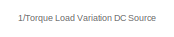
[diagram: root canvas - part 1/5, top center region]
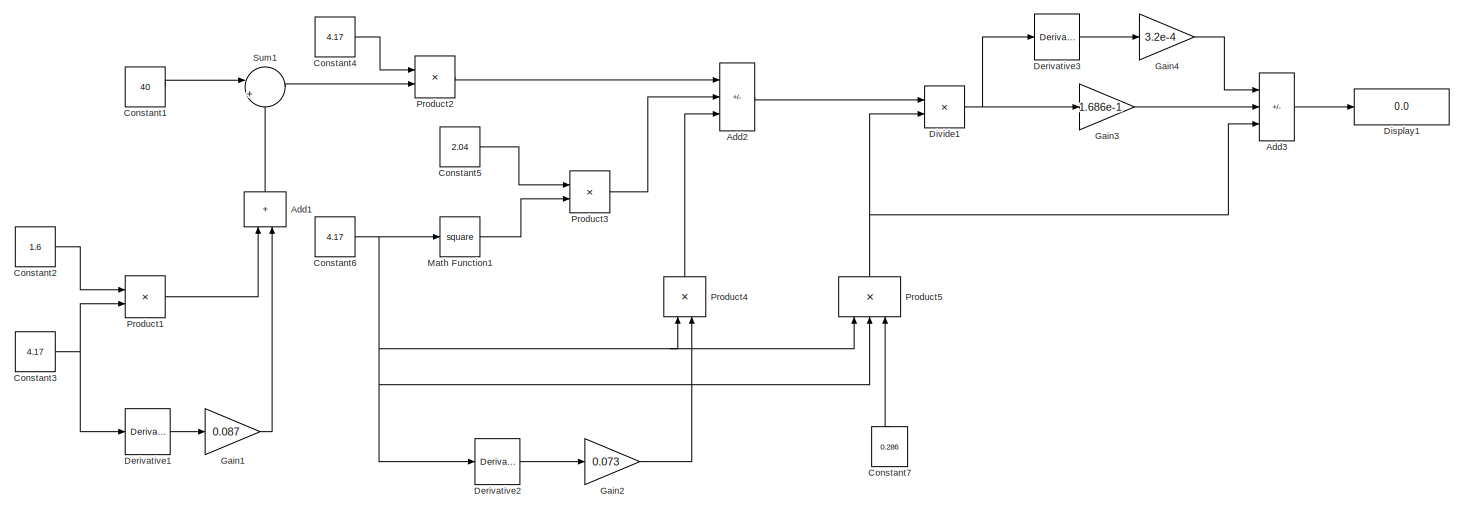
[diagram: root canvas - part 2/5, top right region]
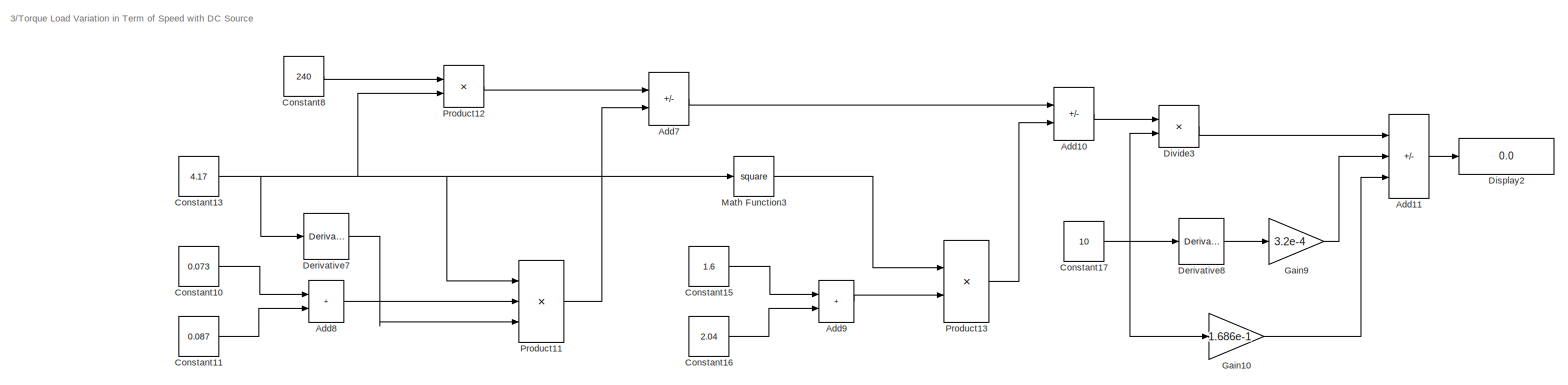
[diagram: root canvas - part 3/5, top left region]
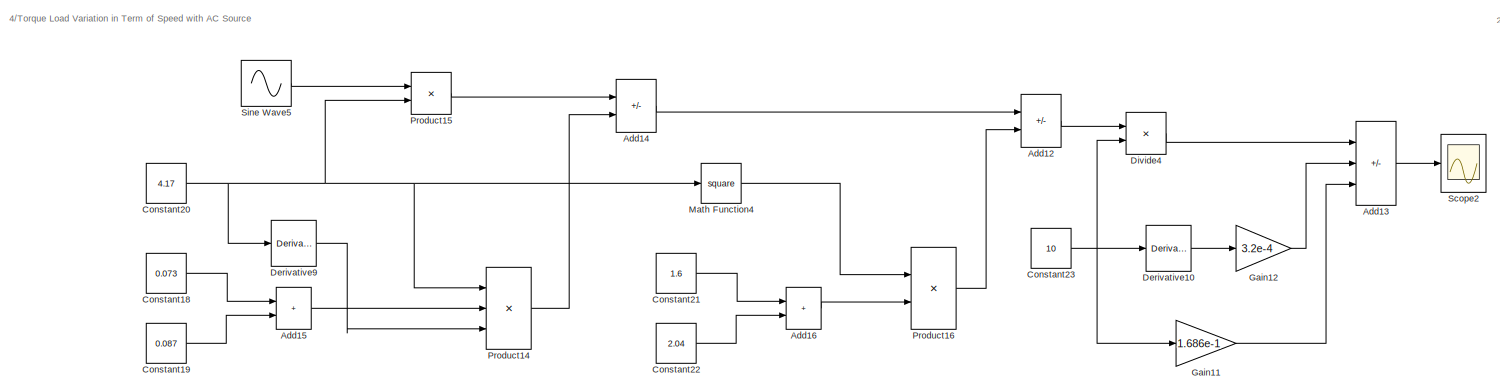
[diagram: root canvas - part 4/5, bottom left region]
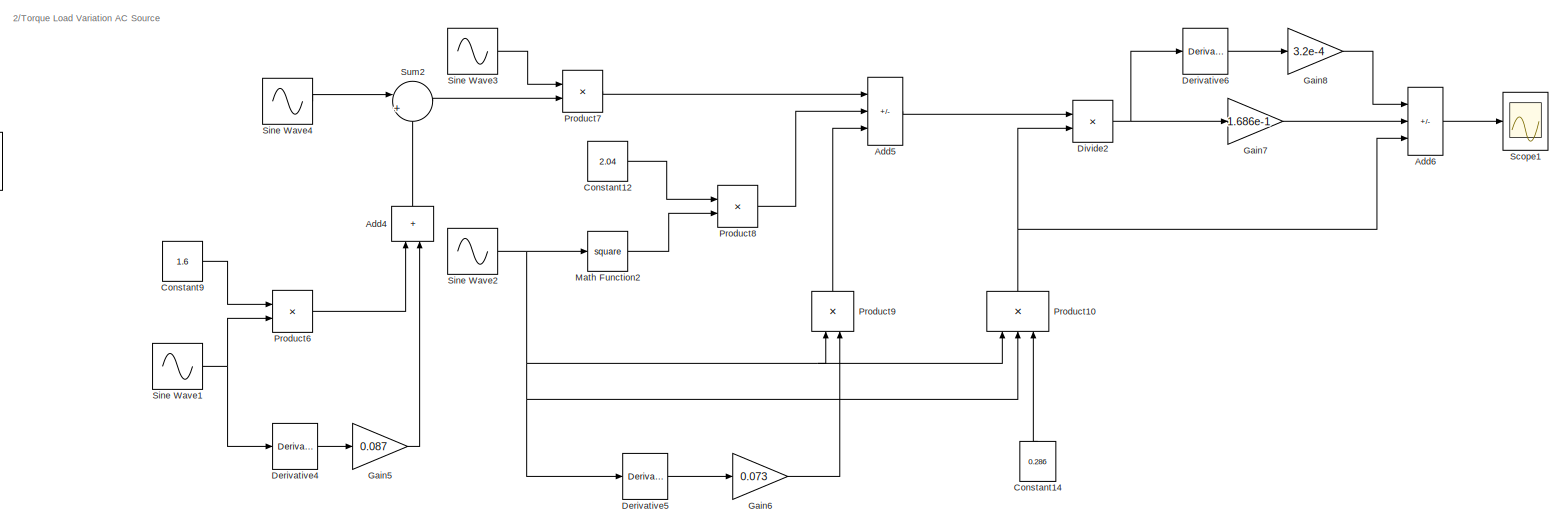
[diagram: root canvas - part 5/5, bottom right region]
MODEL slx_dc81a3fbfa65
KIND model
CONFIG AbsTol = auto
CONFIG EnableMultiTasking = off
CONFIG FixedStep = auto
CONFIG MaxStep = auto
CONFIG MinStep = auto
CONFIG RelTol = 1e-3
CONFIG SampleTimeConstraint = Unconstrained
CONFIG SolverName = VariableStepAuto
CONFIG StartTime = 0.0
CONFIG StopTime = 1
BLOCK [Sum] Add1
  IconShape = rectangular
  NameLocation = left
  Ports = [2, 1]
BLOCK [Sum] Add10
  IconShape = rectangular
  Inputs = +-
  Ports = [2, 1]
BLOCK [Sum] Add11
  IconShape = rectangular
  Inputs = +--
  Ports = [3, 1]
BLOCK [Sum] Add12
  IconShape = rectangular
  Inputs = +-
  Ports = [2, 1]
BLOCK [Sum] Add13
  IconShape = rectangular
  Inputs = +--
  Ports = [3, 1]
BLOCK [Sum] Add14
  IconShape = rectangular
  Inputs = +-
  Ports = [2, 1]
BLOCK [Sum] Add15
  IconShape = rectangular
  Ports = [2, 1]
BLOCK [Sum] Add16
  IconShape = rectangular
  Ports = [2, 1]
BLOCK [Sum] Add2
  IconShape = rectangular
  Inputs = +--
  Ports = [3, 1]
BLOCK [Sum] Add3
  IconShape = rectangular
  Inputs = --+
  Ports = [3, 1]
BLOCK [Sum] Add4
  IconShape = rectangular
  NameLocation = left
  Ports = [2, 1]
BLOCK [Sum] Add5
  IconShape = rectangular
  Inputs = +--
  Ports = [3, 1]
BLOCK [Sum] Add6
  IconShape = rectangular
  Inputs = --+
  Ports = [3, 1]
BLOCK [Sum] Add7
  IconShape = rectangular
  Inputs = +-
  Ports = [2, 1]
BLOCK [Sum] Add8
  IconShape = rectangular
  Ports = [2, 1]
BLOCK [Sum] Add9
  IconShape = rectangular
  Ports = [2, 1]
BLOCK [Constant] Constant1
  Value = 40
BLOCK [Constant] Constant10
  Value = 0.073
BLOCK [Constant] Constant11
  Value = 0.087
BLOCK [Constant] Constant12
  Value = 2.04
BLOCK [Constant] Constant13
  Value = 4.17
BLOCK [Constant] Constant14
  NameLocation = right
  Value = 0.286
BLOCK [Constant] Constant15
  Value = 1.6
BLOCK [Constant] Constant16
  Value = 2.04
BLOCK [Constant] Constant17
  Value = 10
BLOCK [Constant] Constant18
  Value = 0.073
BLOCK [Constant] Constant19
  Value = 0.087
BLOCK [Constant] Constant2
  Value = 1.6
BLOCK [Constant] Constant20
  Value = 4.17
BLOCK [Constant] Constant21
  Value = 1.6
BLOCK [Constant] Constant22
  Value = 2.04
BLOCK [Constant] Constant23
  Value = 10
BLOCK [Constant] Constant3
  Value = 4.17
BLOCK [Constant] Constant4
  Value = 4.17
BLOCK [Constant] Constant5
  Value = 2.04
BLOCK [Constant] Constant6
  Value = 4.17
BLOCK [Constant] Constant7
  NameLocation = right
  Value = 0.286
BLOCK [Constant] Constant8
  Value = 240
BLOCK [Constant] Constant9
  Value = 1.6
BLOCK [Derivative] Derivative1
BLOCK [Derivative] Derivative10
BLOCK [Derivative] Derivative2
BLOCK [Derivative] Derivative3
BLOCK [Derivative] Derivative4
BLOCK [Derivative] Derivative5
BLOCK [Derivative] Derivative6
BLOCK [Derivative] Derivative7
BLOCK [Derivative] Derivative8
BLOCK [Derivative] Derivative9
BLOCK [Display] Display1
  Decimation = 1
  Ports = [1]
BLOCK [Display] Display2
  Decimation = 1
  Ports = [1]
BLOCK [Product] Divide1
  Inputs = */
  Ports = [2, 1]
BLOCK [Product] Divide2
  Inputs = */
  Ports = [2, 1]
BLOCK [Product] Divide3
  Inputs = */
  Ports = [2, 1]
BLOCK [Product] Divide4
  Inputs = */
  Ports = [2, 1]
BLOCK [Gain] Gain1
  Gain = 0.087
BLOCK [Gain] Gain10
  Gain = 1.686e-1
BLOCK [Gain] Gain11
  Gain = 1.686e-1
BLOCK [Gain] Gain12
  Gain = 3.2e-4
BLOCK [Gain] Gain2
  Gain = 0.073
BLOCK [Gain] Gain3
  Gain = 1.686e-1
BLOCK [Gain] Gain4
  Gain = 3.2e-4
BLOCK [Gain] Gain5
  Gain = 0.087
BLOCK [Gain] Gain6
  Gain = 0.073
BLOCK [Gain] Gain7
  Gain = 1.686e-1
BLOCK [Gain] Gain8
  Gain = 3.2e-4
BLOCK [Gain] Gain9
  Gain = 3.2e-4
BLOCK [Math] Math Function1
  Operator = square
  Ports = [1, 1]
BLOCK [Math] Math Function2
  Operator = square
  Ports = [1, 1]
BLOCK [Math] Math Function3
  Operator = square
  Ports = [1, 1]
BLOCK [Math] Math Function4
  Operator = square
  Ports = [1, 1]
BLOCK [Product] Product1
  Ports = [2, 1]
BLOCK [Product] Product10
  Inputs = 3
  NameLocation = right
  Ports = [3, 1]
BLOCK [Product] Product11
  Inputs = 3
  Ports = [3, 1]
BLOCK [Product] Product12
  Ports = [2, 1]
BLOCK [Product] Product13
  Ports = [2, 1]
BLOCK [Product] Product14
  Inputs = 3
  Ports = [3, 1]
BLOCK [Product] Product15
  Ports = [2, 1]
BLOCK [Product] Product16
  Ports = [2, 1]
BLOCK [Product] Product2
  Ports = [2, 1]
BLOCK [Product] Product3
  Ports = [2, 1]
BLOCK [Product] Product4
  NameLocation = right
  Ports = [2, 1]
BLOCK [Product] Product5
  Inputs = 3
  NameLocation = right
  Ports = [3, 1]
BLOCK [Product] Product6
  Ports = [2, 1]
BLOCK [Product] Product7
  Ports = [2, 1]
BLOCK [Product] Product8
  Ports = [2, 1]
BLOCK [Product] Product9
  NameLocation = right
  Ports = [2, 1]
BLOCK [Scope] Scope1
  Floating = off
  NumInputPorts = 1
  Ports = [1]
  ScopeSpecificationString = Simulink.scopes.TimeScopeBlockCfg('CurrentConfiguration', extmgr.ConfigurationSet(extmgr.Configuration('Core','General UI',true),extmgr.Configuration('Core','Source UI',true),extmgr.Configuration('Sources','WiredSimulink',true,'DataLoggingVariableName','ScopeData1'),extmgr.Configuration('Visuals','Time Domain',true,'SerializedDisplays',{struct('MinYLimReal','-139.40379','MaxYLimReal','97.70116','Y...<+1403ch>
BLOCK [Scope] Scope2
  Floating = off
  NumInputPorts = 1
  Ports = [1]
  ScopeSpecificationString = Simulink.scopes.TimeScopeBlockCfg('CurrentConfiguration', extmgr.ConfigurationSet(extmgr.Configuration('Core','General UI',true),extmgr.Configuration('Core','Source UI',true),extmgr.Configuration('Sources','WiredSimulink',true,'DataLoggingVariableName','ScopeData2'),extmgr.Configuration('Visuals','Time Domain',true,'SerializedDisplays',{struct('MinYLimReal','-18.40436','MaxYLimReal','2.4035','YLab...<+1396ch>
BLOCK [Sin] Sine Wave1
  Amplitude = 4.17
  Frequency = 60
  Ports = [0, 1]
  SampleTime = 0
BLOCK [Sin] Sine Wave2
  Amplitude = 4.17
  Frequency = 60
  Ports = [0, 1]
  SampleTime = 0
BLOCK [Sin] Sine Wave3
  Amplitude = 4.17
  Frequency = 60
  Ports = [0, 1]
  SampleTime = 0
BLOCK [Sin] Sine Wave4
  Amplitude = 20
  Frequency = 60
  Ports = [0, 1]
  SampleTime = 0
BLOCK [Sin] Sine Wave5
  Amplitude = 20
  Frequency = 60
  Ports = [0, 1]
  SampleTime = 0
BLOCK [Sum] Sum1
  Inputs = |+-
  NameLocation = top
  Ports = [2, 1]
BLOCK [Sum] Sum2
  Inputs = |+-
  NameLocation = top
  Ports = [2, 1]
ANNOTATION (root): 1/Torque Load Variation DC Source
ANNOTATION (root): 2/Torque Load Variation AC Source
ANNOTATION (root): 3/Torque Load Variation in Term of Speed with DC Source
ANNOTATION (root): 4/Torque Load Variation in Term of Speed with AC Source
LINE Add10:1 -> Divide3:1
LINE Add11:1 -> Display2:1
LINE Add12:1 -> Divide4:1
LINE Add13:1 -> Scope2:1
LINE Add14:1 -> Add12:1
LINE Add15:1 -> Product14:2
LINE Add16:1 -> Product16:2
LINE Add1:1 -> Sum1:2
LINE Add2:1 -> Divide1:1
LINE Add3:1 -> Display1:1
LINE Add4:1 -> Sum2:2
LINE Add5:1 -> Divide2:1
LINE Add6:1 -> Scope1:1
LINE Add7:1 -> Add10:1
LINE Add8:1 -> Product11:2
LINE Add9:1 -> Product13:2
LINE Constant10:1 -> Add8:1
LINE Constant11:1 -> Add8:2
LINE Constant12:1 -> Product8:1
NET Constant13:1 -> Derivative7:1, Math Function3:1, Product11:1, Product12:2
LINE Constant14:1 -> Product10:3
LINE Constant15:1 -> Add9:1
LINE Constant16:1 -> Add9:2
NET Constant17:1 -> Derivative8:1, Divide3:2, Gain10:1
LINE Constant18:1 -> Add15:1
LINE Constant19:1 -> Add15:2
LINE Constant1:1 -> Sum1:1
NET Constant20:1 -> Derivative9:1, Math Function4:1, Product14:1, Product15:2
LINE Constant21:1 -> Add16:1
LINE Constant22:1 -> Add16:2
NET Constant23:1 -> Derivative10:1, Divide4:2, Gain11:1
LINE Constant2:1 -> Product1:1
NET Constant3:1 -> Derivative1:1, Product1:2
LINE Constant4:1 -> Product2:1
LINE Constant5:1 -> Product3:1
NET Constant6:1 -> Derivative2:1, Math Function1:1, Product4:1, Product5:1, Product5:2
LINE Constant7:1 -> Product5:3
LINE Constant8:1 -> Product12:1
LINE Constant9:1 -> Product6:1
LINE Derivative10:1 -> Gain12:1
LINE Derivative1:1 -> Gain1:1
LINE Derivative2:1 -> Gain2:1
LINE Derivative3:1 -> Gain4:1
LINE Derivative4:1 -> Gain5:1
LINE Derivative5:1 -> Gain6:1
LINE Derivative6:1 -> Gain8:1
LINE Derivative7:1 -> Product11:3
LINE Derivative8:1 -> Gain9:1
LINE Derivative9:1 -> Product14:3
NET Divide1:1 -> Derivative3:1, Gain3:1
NET Divide2:1 -> Derivative6:1, Gain7:1
LINE Divide3:1 -> Add11:1
LINE Divide4:1 -> Add13:1
LINE Gain10:1 -> Add11:3
LINE Gain11:1 -> Add13:3
LINE Gain12:1 -> Add13:2
LINE Gain1:1 -> Add1:2
LINE Gain2:1 -> Product4:2
LINE Gain3:1 -> Add3:2
LINE Gain4:1 -> Add3:1
LINE Gain5:1 -> Add4:2
LINE Gain6:1 -> Product9:2
LINE Gain7:1 -> Add6:2
LINE Gain8:1 -> Add6:1
LINE Gain9:1 -> Add11:2
LINE Math Function1:1 -> Product3:2
LINE Math Function2:1 -> Product8:2
LINE Math Function3:1 -> Product13:1
LINE Math Function4:1 -> Product16:1
NET Product10:1 -> Add6:3, Divide2:2
LINE Product11:1 -> Add7:2
LINE Product12:1 -> Add7:1
LINE Product13:1 -> Add10:2
LINE Product14:1 -> Add14:2
LINE Product15:1 -> Add14:1
LINE Product16:1 -> Add12:2
LINE Product1:1 -> Add1:1
LINE Product2:1 -> Add2:1
LINE Product3:1 -> Add2:2
LINE Product4:1 -> Add2:3
NET Product5:1 -> Add3:3, Divide1:2
LINE Product6:1 -> Add4:1
LINE Product7:1 -> Add5:1
LINE Product8:1 -> Add5:2
LINE Product9:1 -> Add5:3
NET Sine Wave1:1 -> Derivative4:1, Product6:2
NET Sine Wave2:1 -> Derivative5:1, Math Function2:1, Product10:1, Product10:2, Product9:1
LINE Sine Wave3:1 -> Product7:1
LINE Sine Wave4:1 -> Sum2:1
LINE Sine Wave5:1 -> Product15:1
LINE Sum1:1 -> Product2:2
LINE Sum2:1 -> Product7:2
note: NET lines group one-source signal fan-out (src -> all destinations, sorted); 1:1 wires keep LINE
